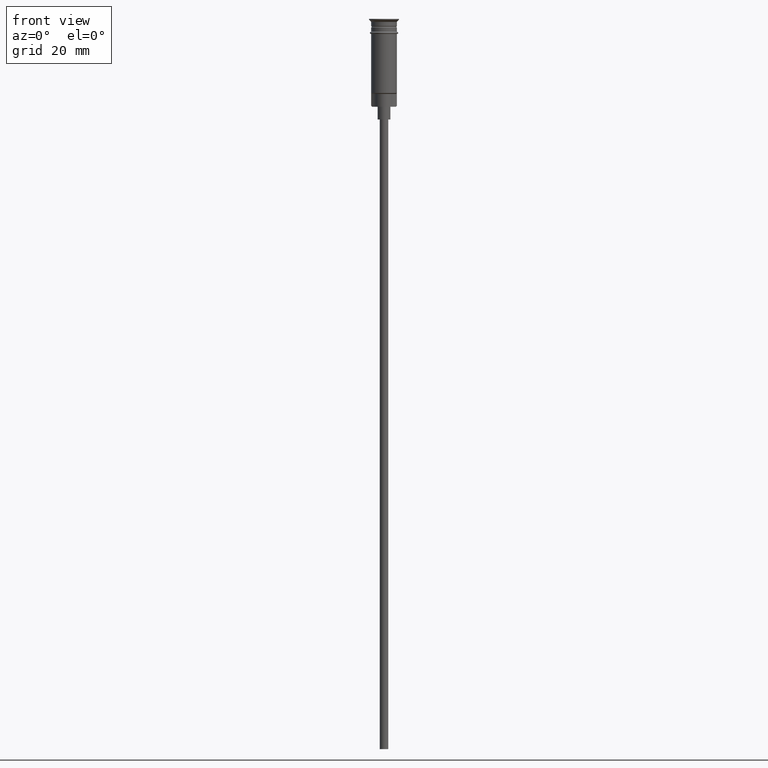
[diagram: clean part render]
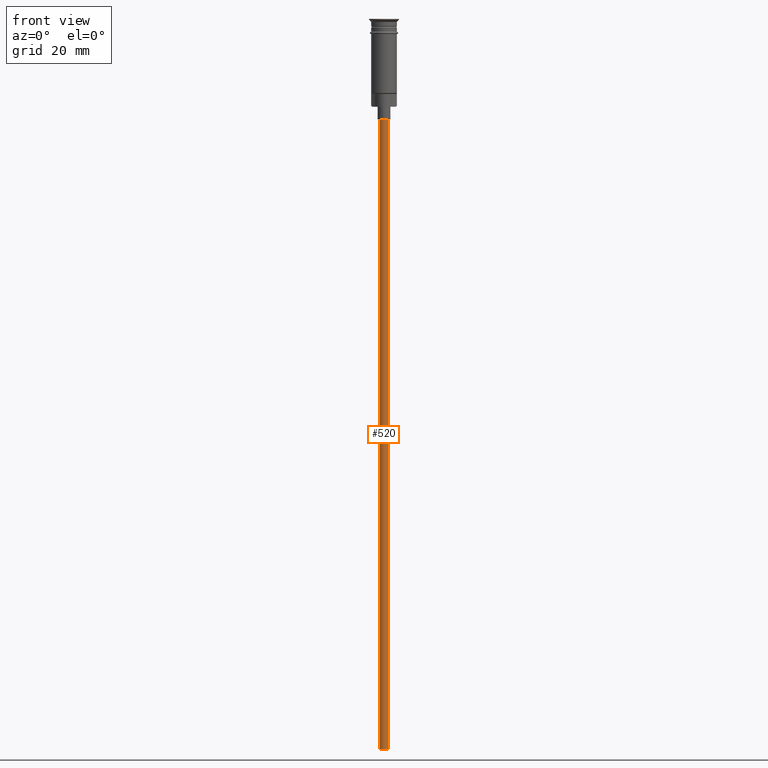
[diagram: same view with one face highlighted and labeled with its STEP entity id]
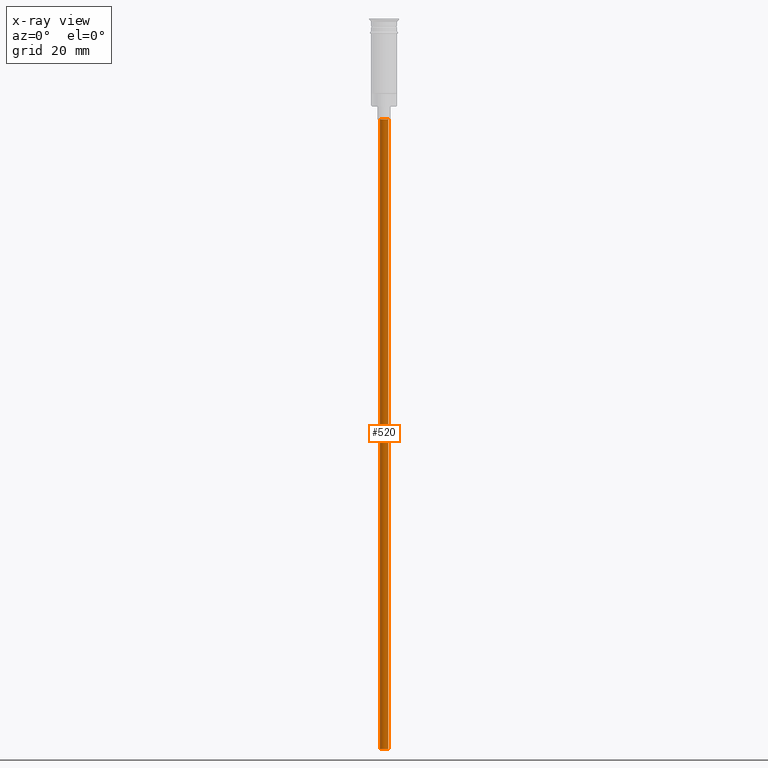
[diagram: x-ray of the same camera — body ghosted, the highlighted face saturated]
A machine part, front view. The second image highlights one B-rep face of the part: STEP entity #520.
The next image is the same camera in x-ray: the body ghosted, the highlighted face saturated — about 0% of this face is hidden behind the body in this view.
In plain terms, the highlighted cylindrical surface (edge-blend (fillet) strip) has radius 1 mm, axis along (-0, -0, 1).
Its self-contained STEP definition (entity closure, byte-faithful):
#10 = ORIENTED_EDGE ( 'NONE', *, *, #1082, .T. ) ;
#31 = CARTESIAN_POINT ( 'NONE',  ( -0.9999999999999997780, 1.224646799147352961E-16, -23.50000000000000000 ) ) ;
#74 = CIRCLE ( 'NONE', #1192, 0.9999999999999997780 ) ;
#80 = VERTEX_POINT ( 'NONE', #31 ) ;
#86 = EDGE_CURVE ( 'NONE', #1242, #1451, #178, .T. ) ;
#150 = LINE ( 'NONE', #656, #1326 ) ;
#178 = CIRCLE ( 'NONE', #1037, 0.9999999999999997780 ) ;
#198 = DIRECTION ( 'NONE',  ( 0.000000000000000000, 0.000000000000000000, -1.000000000000000000 ) ) ;
#214 = ORIENTED_EDGE ( 'NONE', *, *, #86, .F. ) ;
#352 = CARTESIAN_POINT ( 'NONE',  ( -0.9999999999999997780, 1.224646799147352961E-16, -170.4999999999999716 ) ) ;
#359 = DIRECTION ( 'NONE',  ( -0.000000000000000000, -0.000000000000000000, 1.000000000000000000 ) ) ;
#366 = FACE_OUTER_BOUND ( 'NONE', #861, .T. ) ;
#418 = AXIS2_PLACEMENT_3D ( 'NONE', #582, #850, #457 ) ;
#427 = DIRECTION ( 'NONE',  ( 0.000000000000000000, 0.000000000000000000, -1.000000000000000000 ) ) ;
#457 = DIRECTION ( 'NONE',  ( 1.000000000000000000, 0.000000000000000000, 0.000000000000000000 ) ) ;
#485 = CARTESIAN_POINT ( 'NONE',  ( 0.9999999999999997780, 0.000000000000000000, -170.4999999999999716 ) ) ;
#520 = ADVANCED_FACE ( 'NONE', ( #366 ), #1094, .T. ) ;
#582 = CARTESIAN_POINT ( 'NONE',  ( 0.000000000000000000, 0.000000000000000000, -170.4999999999999716 ) ) ;
#621 = LINE ( 'NONE', #1103, #942 ) ;
#656 = CARTESIAN_POINT ( 'NONE',  ( -0.9999999999999997780, 1.224646799147352961E-16, -170.4999999999999716 ) ) ;
#698 = VERTEX_POINT ( 'NONE', #1150 ) ;
#703 = EDGE_CURVE ( 'NONE', #1451, #80, #150, .T. ) ;
#850 = DIRECTION ( 'NONE',  ( -0.000000000000000000, -0.000000000000000000, 1.000000000000000000 ) ) ;
#861 = EDGE_LOOP ( 'NONE', ( #1297, #214, #1315, #10 ) ) ;
#902 = DIRECTION ( 'NONE',  ( -0.000000000000000000, -0.000000000000000000, 1.000000000000000000 ) ) ;
#942 = VECTOR ( 'NONE', #359, 1000.000000000000000 ) ;
#972 = CARTESIAN_POINT ( 'NONE',  ( 0.000000000000000000, 0.000000000000000000, -23.50000000000000000 ) ) ;
#1037 = AXIS2_PLACEMENT_3D ( 'NONE', #1417, #427, #1169 ) ;
#1082 = EDGE_CURVE ( 'NONE', #698, #80, #74, .T. ) ;
#1094 = CYLINDRICAL_SURFACE ( 'NONE', #418, 0.9999999999999997780 ) ;
#1103 = CARTESIAN_POINT ( 'NONE',  ( 0.9999999999999997780, 0.000000000000000000, -170.4999999999999716 ) ) ;
#1150 = CARTESIAN_POINT ( 'NONE',  ( 0.9999999999999997780, 0.000000000000000000, -23.50000000000000000 ) ) ;
#1169 = DIRECTION ( 'NONE',  ( -1.000000000000000000, 0.000000000000000000, 0.000000000000000000 ) ) ;
#1192 = AXIS2_PLACEMENT_3D ( 'NONE', #972, #198, #1441 ) ;
#1209 = EDGE_CURVE ( 'NONE', #1242, #698, #621, .T. ) ;
#1242 = VERTEX_POINT ( 'NONE', #485 ) ;
#1297 = ORIENTED_EDGE ( 'NONE', *, *, #703, .F. ) ;
#1315 = ORIENTED_EDGE ( 'NONE', *, *, #1209, .T. ) ;
#1326 = VECTOR ( 'NONE', #902, 1000.000000000000000 ) ;
#1417 = CARTESIAN_POINT ( 'NONE',  ( 0.000000000000000000, 0.000000000000000000, -170.4999999999999716 ) ) ;
#1441 = DIRECTION ( 'NONE',  ( -1.000000000000000000, 0.000000000000000000, 0.000000000000000000 ) ) ;
#1451 = VERTEX_POINT ( 'NONE', #352 ) ;